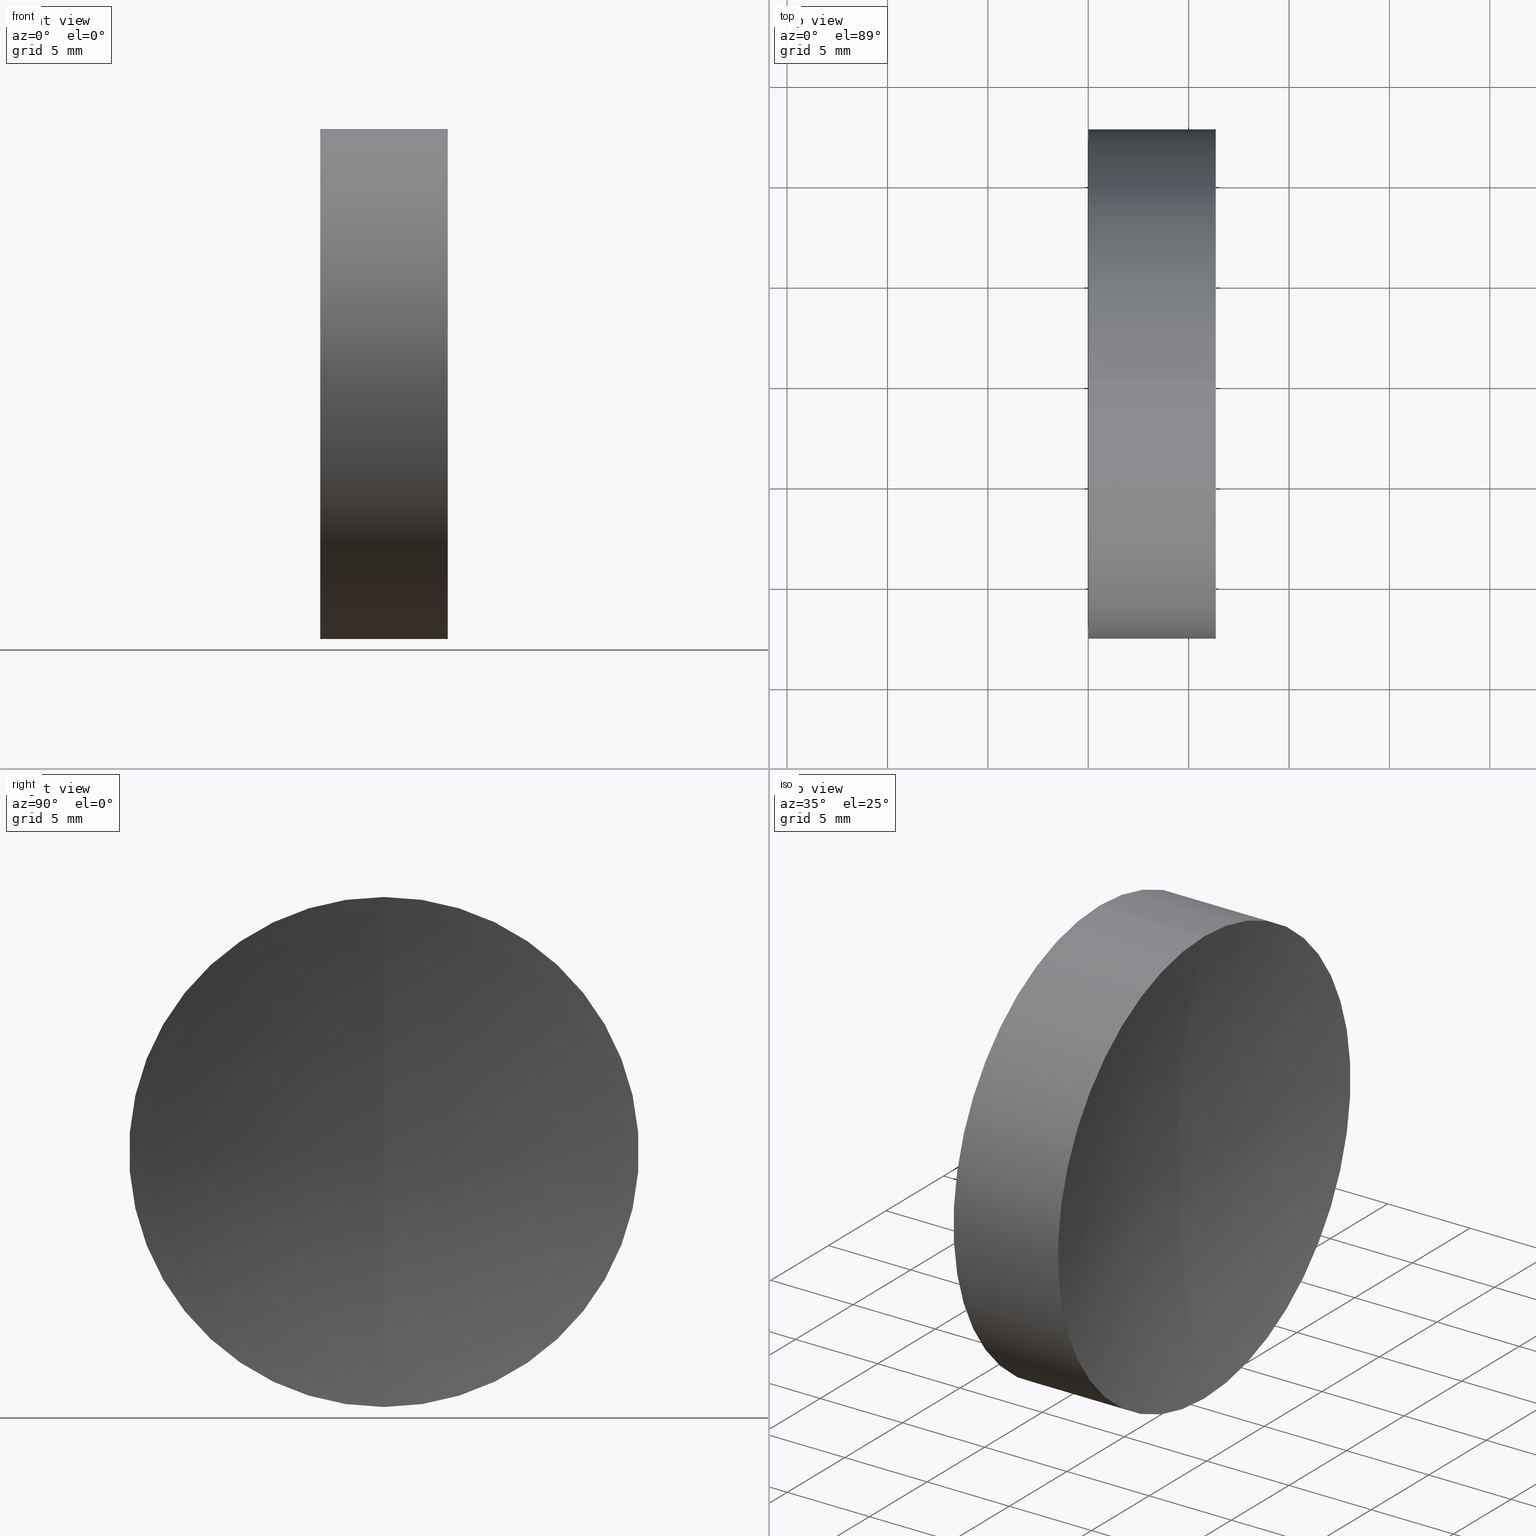
[diagram: canonical four-view strip — front | top / right | iso, engineering-drawing reading convention]
A machine part, canonical four-view strip (front | top / right | iso — engineering-drawing reading convention). The complete STEP part file that produces these views, byte-faithful:
ISO-10303-21;
HEADER;
FILE_DESCRIPTION (( 'STEP AP214' ),
    '1' );
FILE_NAME ('432515.STEP',
    '2019-08-26T09:54:50',
    ( 'user' ),
    ( '΢���й�' ),
    'SwSTEP 2.0',
    'SolidWorks 2016',
    '' );
FILE_SCHEMA (( 'AUTOMOTIVE_DESIGN' ));
ENDSEC;

DATA;
#1 = CARTESIAN_POINT ( 'NONE',  ( 0.0000000000000000000, 0.0000000000000000000, 0.0000000000000000000 ) ) ;
#2 = FACE_OUTER_BOUND ( 'NONE', #103, .T. ) ;
#3 = DIRECTION ( 'NONE',  ( -1.000000000000000000, -0.0000000000000000000, -0.0000000000000000000 ) ) ;
#4 = ORIENTED_EDGE ( 'NONE', *, *, #148, .T. ) ;
#5 = AXIS2_PLACEMENT_3D ( 'NONE', #126, #27, #9 ) ;
#6 = COLOUR_RGB ( '',1.000000000000000000, 1.000000000000000000, 1.000000000000000000 ) ;
#7 = CARTESIAN_POINT ( 'NONE',  ( 0.0000000000000000000, 0.0000000000000000000, 0.0000000000000000000 ) ) ;
#8 = CARTESIAN_POINT ( 'NONE',  ( 0.0000000000000000000, 1.555301434917140400E-015, -12.70000000000001500 ) ) ;
#9 = DIRECTION ( 'NONE',  ( 0.0000000000000000000, -1.224646799147353200E-016, 1.000000000000000000 ) ) ;
#10 = DIRECTION ( 'NONE',  ( -1.000000000000000000, -0.0000000000000000000, -0.0000000000000000000 ) ) ;
#11 = DIRECTION ( 'NONE',  ( -1.000000000000000000, -0.0000000000000000000, -0.0000000000000000000 ) ) ;
#12 = PRODUCT_RELATED_PRODUCT_CATEGORY ( 'part', '', ( #118 ) ) ;
#13 = EDGE_LOOP ( 'NONE', ( #129, #112, #145, #74 ) ) ;
#14 =( NAMED_UNIT ( * ) SI_UNIT ( $, .STERADIAN. ) SOLID_ANGLE_UNIT ( ) );
#15 = FACE_OUTER_BOUND ( 'NONE', #95, .T. ) ;
#16 = CARTESIAN_POINT ( 'NONE',  ( 0.0000000000000000000, 0.0000000000000000000, 12.70000000000001500 ) ) ;
#17 = SURFACE_STYLE_FILL_AREA ( #135 ) ;
#18 = STYLED_ITEM ( 'NONE', ( #141 ), #46 ) ;
#19 = DIRECTION ( 'NONE',  ( 0.0000000000000000000, 0.0000000000000000000, 1.000000000000000000 ) ) ;
#20 = COLOUR_RGB ( '',1.000000000000000000, 1.000000000000000000, 1.000000000000000000 ) ;
#21 = CARTESIAN_POINT ( 'NONE',  ( 54.70999999999998000, 0.0000000000000000000, 0.0000000000000000000 ) ) ;
#22 = CYLINDRICAL_SURFACE ( 'NONE', #35, 12.70000000000001500 ) ;
#23 = DIRECTION ( 'NONE',  ( 0.0000000000000000000, 0.0000000000000000000, 1.000000000000000000 ) ) ;
#24 = DIRECTION ( 'NONE',  ( 0.0000000000000000000, 0.0000000000000000000, 1.000000000000000000 ) ) ;
#25 = LINE ( 'NONE', #8, #50 ) ;
#26 = PLANE ( 'NONE',  #80 ) ;
#27 = DIRECTION ( 'NONE',  ( -0.0000000000000000000, 1.000000000000000000, 1.224646799147353200E-016 ) ) ;
#28 = CIRCLE ( 'NONE', #5, 49.99999999999998600 ) ;
#29 =( NAMED_UNIT ( * ) PLANE_ANGLE_UNIT ( ) SI_UNIT ( $, .RADIAN. ) );
#30 = EDGE_CURVE ( 'NONE', #104, #76, #25, .T. ) ;
#31 = UNCERTAINTY_MEASURE_WITH_UNIT (LENGTH_MEASURE( 1.000000000000000100E-005 ), #115, 'distance_accuracy_value', 'NONE');
#32 = ORIENTED_EDGE ( 'NONE', *, *, #131, .F. ) ;
#33 = AXIS2_PLACEMENT_3D ( 'NONE', #21, #41, #59 ) ;
#34 = ADVANCED_FACE ( 'NONE', ( #15 ), #26, .F. ) ;
#35 = AXIS2_PLACEMENT_3D ( 'NONE', #119, #3, #147 ) ;
#36 = VECTOR ( 'NONE', #136, 1000.000000000000000 ) ;
#37 = EDGE_LOOP ( 'NONE', ( #134, #87, #90 ) ) ;
#38 = CARTESIAN_POINT ( 'NONE',  ( 6.349789082345805200, 1.555301434917142000E-015, -12.70000000000002800 ) ) ;
#39 = PRESENTATION_STYLE_ASSIGNMENT (( #110 ) ) ;
#40 =( LENGTH_UNIT ( ) NAMED_UNIT ( * ) SI_UNIT ( .MILLI., .METRE. ) );
#41 = DIRECTION ( 'NONE',  ( 0.0000000000000000000, 1.000000000000000000, 0.0000000000000000000 ) ) ;
#42 = CARTESIAN_POINT ( 'NONE',  ( 0.0000000000000000000, 0.0000000000000000000, 0.0000000000000000000 ) ) ;
#43 = EDGE_CURVE ( 'NONE', #104, #155, #79, .T. ) ;
#44 = ORIENTED_EDGE ( 'NONE', *, *, #139, .T. ) ;
#45 = AXIS2_PLACEMENT_3D ( 'NONE', #144, #157, #150 ) ;
#46 = MANIFOLD_SOLID_BREP ( '��ת1', #47 ) ;
#47 = CLOSED_SHELL ( 'NONE', ( #166, #67, #34, #92, #72 ) ) ;
#48 =( NAMED_UNIT ( * ) PLANE_ANGLE_UNIT ( ) SI_UNIT ( $, .RADIAN. ) );
#49 = DIRECTION ( 'NONE',  ( -1.000000000000000000, -0.0000000000000000000, -0.0000000000000000000 ) ) ;
#50 = VECTOR ( 'NONE', #71, 1000.000000000000000 ) ;
#51 =( NAMED_UNIT ( * ) SI_UNIT ( $, .STERADIAN. ) SOLID_ANGLE_UNIT ( ) );
#52 = APPLICATION_PROTOCOL_DEFINITION ( 'draft international standard', 'automotive_design', 1998, #86 ) ;
#53 = FILL_AREA_STYLE_COLOUR ( '', #20 ) ;
#54 =( GEOMETRIC_REPRESENTATION_CONTEXT ( 3 ) GLOBAL_UNCERTAINTY_ASSIGNED_CONTEXT ( ( #93 ) ) GLOBAL_UNIT_ASSIGNED_CONTEXT ( ( #40, #29, #107 ) ) REPRESENTATION_CONTEXT ( 'NONE', 'WORKASPACE' ) );
#55 = EDGE_LOOP ( 'NONE', ( #125, #137, #116, #82 ) ) ;
#56 = FACE_OUTER_BOUND ( 'NONE', #55, .T. ) ;
#57 = DIRECTION ( 'NONE',  ( -1.000000000000000000, -0.0000000000000000000, -0.0000000000000000000 ) ) ;
#58 = LINE ( 'NONE', #16, #36 ) ;
#59 = DIRECTION ( 'NONE',  ( 0.0000000000000000000, 0.0000000000000000000, 1.000000000000000000 ) ) ;
#60 = PRODUCT_DEFINITION_FORMATION_WITH_SPECIFIED_SOURCE ( '�κ�', '', #118, .NOT_KNOWN. ) ;
#61 = VERTEX_POINT ( 'NONE', #97 ) ;
#62 =( GEOMETRIC_REPRESENTATION_CONTEXT ( 3 ) GLOBAL_UNCERTAINTY_ASSIGNED_CONTEXT ( ( #83 ) ) GLOBAL_UNIT_ASSIGNED_CONTEXT ( ( #63, #165, #14 ) ) REPRESENTATION_CONTEXT ( 'NONE', 'WORKASPACE' ) );
#63 =( LENGTH_UNIT ( ) NAMED_UNIT ( * ) SI_UNIT ( .MILLI., .METRE. ) );
#64 = SPHERICAL_SURFACE ( 'NONE', #106, 49.99999999999998600 ) ;
#65 = CARTESIAN_POINT ( 'NONE',  ( 54.70999999999998000, 0.0000000000000000000, 0.0000000000000000000 ) ) ;
#66 = AXIS2_PLACEMENT_3D ( 'NONE', #1, #57, #109 ) ;
#67 = ADVANCED_FACE ( 'NONE', ( #130 ), #96, .F. ) ;
#68 = SURFACE_STYLE_FILL_AREA ( #153 ) ;
#69 = PRODUCT_DEFINITION ( 'δ֪', '', #60, #128 ) ;
#70 = PRODUCT_DEFINITION_SHAPE ( 'NONE', 'NONE',  #69 ) ;
#71 = DIRECTION ( 'NONE',  ( -1.000000000000000000, -0.0000000000000000000, -0.0000000000000000000 ) ) ;
#72 = ADVANCED_FACE ( 'NONE', ( #160 ), #91, .T. ) ;
#73 = EDGE_CURVE ( 'NONE', #155, #104, #127, .T. ) ;
#74 = ORIENTED_EDGE ( 'NONE', *, *, #148, .F. ) ;
#75 = AXIS2_PLACEMENT_3D ( 'NONE', #85, #132, #19 ) ;
#76 = VERTEX_POINT ( 'NONE', #143 ) ;
#77 = DIRECTION ( 'NONE',  ( 0.0000000000000000000, 0.0000000000000000000, 1.000000000000000000 ) ) ;
#78 = ORIENTED_EDGE ( 'NONE', *, *, #138, .T. ) ;
#79 = CIRCLE ( 'NONE', #98, 12.70000000000003100 ) ;
#80 = AXIS2_PLACEMENT_3D ( 'NONE', #117, #163, #111 ) ;
#81 = AXIS2_PLACEMENT_3D ( 'NONE', #121, #10, #94 ) ;
#82 = ORIENTED_EDGE ( 'NONE', *, *, #123, .F. ) ;
#83 = UNCERTAINTY_MEASURE_WITH_UNIT (LENGTH_MEASURE( 1.000000000000000100E-005 ), #63, 'distance_accuracy_value', 'NONE');
#84 = FILL_AREA_STYLE_COLOUR ( '', #6 ) ;
#85 = CARTESIAN_POINT ( 'NONE',  ( 6.349789082345805200, 0.0000000000000000000, 0.0000000000000000000 ) ) ;
#86 = APPLICATION_CONTEXT ( 'automotive_design' ) ;
#87 = ORIENTED_EDGE ( 'NONE', *, *, #131, .T. ) ;
#88 = APPLICATION_CONTEXT ( 'automotive_design' ) ;
#89 = CIRCLE ( 'NONE', #45, 49.99999999999998600 ) ;
#90 = ORIENTED_EDGE ( 'NONE', *, *, #139, .F. ) ;
#91 = CYLINDRICAL_SURFACE ( 'NONE', #66, 12.70000000000001500 ) ;
#92 = ADVANCED_FACE ( 'NONE', ( #2 ), #64, .F. ) ;
#93 = UNCERTAINTY_MEASURE_WITH_UNIT (LENGTH_MEASURE( 1.000000000000000100E-005 ), #40, 'distance_accuracy_value', 'NONE');
#94 = DIRECTION ( 'NONE',  ( 0.0000000000000000000, 0.0000000000000000000, 1.000000000000000000 ) ) ;
#95 = EDGE_LOOP ( 'NONE', ( #78, #4 ) ) ;
#96 = SPHERICAL_SURFACE ( 'NONE', #33, 49.99999999999998600 ) ;
#97 = CARTESIAN_POINT ( 'NONE',  ( 0.0000000000000000000, 0.0000000000000000000, 12.69999999999999900 ) ) ;
#98 = AXIS2_PLACEMENT_3D ( 'NONE', #122, #49, #24 ) ;
#99 = ADVANCED_BREP_SHAPE_REPRESENTATION ( '432515', ( #46, #146 ), #54 ) ;
#100 = DIRECTION ( 'NONE',  ( 0.0000000000000000000, 1.000000000000000000, 0.0000000000000000000 ) ) ;
#101 = SURFACE_STYLE_USAGE ( .BOTH. , #102 ) ;
#102 = SURFACE_SIDE_STYLE ('',( #68 ) ) ;
#103 = EDGE_LOOP ( 'NONE', ( #32, #108, #44 ) ) ;
#104 = VERTEX_POINT ( 'NONE', #38 ) ;
#105 = DIRECTION ( 'NONE',  ( 1.000000000000000000, 0.0000000000000000000, 0.0000000000000000000 ) ) ;
#106 = AXIS2_PLACEMENT_3D ( 'NONE', #65, #100, #77 ) ;
#107 =( NAMED_UNIT ( * ) SI_UNIT ( $, .STERADIAN. ) SOLID_ANGLE_UNIT ( ) );
#108 = ORIENTED_EDGE ( 'NONE', *, *, #73, .F. ) ;
#109 = DIRECTION ( 'NONE',  ( 0.0000000000000000000, 0.0000000000000000000, 1.000000000000000000 ) ) ;
#110 = SURFACE_STYLE_USAGE ( .BOTH. , #124 ) ;
#111 = DIRECTION ( 'NONE',  ( 0.0000000000000000000, 0.0000000000000000000, -1.000000000000000000 ) ) ;
#112 = ORIENTED_EDGE ( 'NONE', *, *, #43, .T. ) ;
#113 = AXIS2_PLACEMENT_3D ( 'NONE', #7, #11, #23 ) ;
#114 = CARTESIAN_POINT ( 'NONE',  ( 4.709999999999992000, 0.0000000000000000000, 3.061616997868382300E-015 ) ) ;
#115 =( LENGTH_UNIT ( ) NAMED_UNIT ( * ) SI_UNIT ( .MILLI., .METRE. ) );
#116 = ORIENTED_EDGE ( 'NONE', *, *, #138, .F. ) ;
#117 = CARTESIAN_POINT ( 'NONE',  ( 0.0000000000000000000, 0.0000000000000000000, 0.0000000000000000000 ) ) ;
#118 = PRODUCT ( '432515', '432515', '', ( #158 ) ) ;
#119 = CARTESIAN_POINT ( 'NONE',  ( 0.0000000000000000000, 0.0000000000000000000, 0.0000000000000000000 ) ) ;
#120 = CIRCLE ( 'NONE', #81, 12.69999999999999900 ) ;
#121 = CARTESIAN_POINT ( 'NONE',  ( 0.0000000000000000000, 0.0000000000000000000, 0.0000000000000000000 ) ) ;
#122 = CARTESIAN_POINT ( 'NONE',  ( 6.349789082345805200, 0.0000000000000000000, 0.0000000000000000000 ) ) ;
#123 = EDGE_CURVE ( 'NONE', #155, #61, #58, .T. ) ;
#124 = SURFACE_SIDE_STYLE ('',( #17 ) ) ;
#125 = ORIENTED_EDGE ( 'NONE', *, *, #73, .T. ) ;
#126 = CARTESIAN_POINT ( 'NONE',  ( 54.70999999999998000, 0.0000000000000000000, 0.0000000000000000000 ) ) ;
#127 = CIRCLE ( 'NONE', #75, 12.70000000000003100 ) ;
#128 = PRODUCT_DEFINITION_CONTEXT ( 'detailed design', #88, 'design' ) ;
#129 = ORIENTED_EDGE ( 'NONE', *, *, #30, .F. ) ;
#130 = FACE_OUTER_BOUND ( 'NONE', #37, .T. ) ;
#131 = EDGE_CURVE ( 'NONE', #104, #162, #28, .T. ) ;
#132 = DIRECTION ( 'NONE',  ( -1.000000000000000000, -0.0000000000000000000, -0.0000000000000000000 ) ) ;
#133 = APPLICATION_PROTOCOL_DEFINITION ( 'draft international standard', 'automotive_design', 1998, #88 ) ;
#134 = ORIENTED_EDGE ( 'NONE', *, *, #43, .F. ) ;
#135 = FILL_AREA_STYLE ('',( #84 ) ) ;
#136 = DIRECTION ( 'NONE',  ( -1.000000000000000000, -0.0000000000000000000, -0.0000000000000000000 ) ) ;
#137 = ORIENTED_EDGE ( 'NONE', *, *, #30, .T. ) ;
#138 = EDGE_CURVE ( 'NONE', #61, #76, #120, .T. ) ;
#139 = EDGE_CURVE ( 'NONE', #155, #162, #89, .T. ) ;
#140 = PRESENTATION_LAYER_ASSIGNMENT (  '', '', ( #18 ) ) ;
#141 = PRESENTATION_STYLE_ASSIGNMENT (( #101 ) ) ;
#142 = PRESENTATION_LAYER_ASSIGNMENT (  '', '', ( #164 ) ) ;
#143 = CARTESIAN_POINT ( 'NONE',  ( 0.0000000000000000000, 1.555301434917139600E-015, -12.69999999999999900 ) ) ;
#144 = CARTESIAN_POINT ( 'NONE',  ( 54.70999999999998000, 0.0000000000000000000, 0.0000000000000000000 ) ) ;
#145 = ORIENTED_EDGE ( 'NONE', *, *, #123, .T. ) ;
#146 = AXIS2_PLACEMENT_3D ( 'NONE', #42, #151, #105 ) ;
#147 = DIRECTION ( 'NONE',  ( 0.0000000000000000000, 0.0000000000000000000, 1.000000000000000000 ) ) ;
#148 = EDGE_CURVE ( 'NONE', #76, #61, #156, .T. ) ;
#149 = MECHANICAL_DESIGN_GEOMETRIC_PRESENTATION_REPRESENTATION (  '', ( #18 ), #62 ) ;
#150 = DIRECTION ( 'NONE',  ( 0.0000000000000000000, 0.0000000000000000000, -1.000000000000000000 ) ) ;
#151 = DIRECTION ( 'NONE',  ( 0.0000000000000000000, 0.0000000000000000000, 1.000000000000000000 ) ) ;
#152 = MECHANICAL_DESIGN_GEOMETRIC_PRESENTATION_REPRESENTATION (  '', ( #164 ), #159 ) ;
#153 = FILL_AREA_STYLE ('',( #53 ) ) ;
#154 = SHAPE_DEFINITION_REPRESENTATION ( #70, #99 ) ;
#155 = VERTEX_POINT ( 'NONE', #161 ) ;
#156 = CIRCLE ( 'NONE', #113, 12.69999999999999900 ) ;
#157 = DIRECTION ( 'NONE',  ( 0.0000000000000000000, -1.000000000000000000, 0.0000000000000000000 ) ) ;
#158 = PRODUCT_CONTEXT ( 'NONE', #86, 'mechanical' ) ;
#159 =( GEOMETRIC_REPRESENTATION_CONTEXT ( 3 ) GLOBAL_UNCERTAINTY_ASSIGNED_CONTEXT ( ( #31 ) ) GLOBAL_UNIT_ASSIGNED_CONTEXT ( ( #115, #48, #51 ) ) REPRESENTATION_CONTEXT ( 'NONE', 'WORKASPACE' ) );
#160 = FACE_OUTER_BOUND ( 'NONE', #13, .T. ) ;
#161 = CARTESIAN_POINT ( 'NONE',  ( 6.349789082345805200, 0.0000000000000000000, 12.70000000000002800 ) ) ;
#162 = VERTEX_POINT ( 'NONE', #114 ) ;
#163 = DIRECTION ( 'NONE',  ( 1.000000000000000000, 0.0000000000000000000, 0.0000000000000000000 ) ) ;
#164 = STYLED_ITEM ( 'NONE', ( #39 ), #99 ) ;
#165 =( NAMED_UNIT ( * ) PLANE_ANGLE_UNIT ( ) SI_UNIT ( $, .RADIAN. ) );
#166 = ADVANCED_FACE ( 'NONE', ( #56 ), #22, .T. ) ;
ENDSEC;
END-ISO-10303-21;
